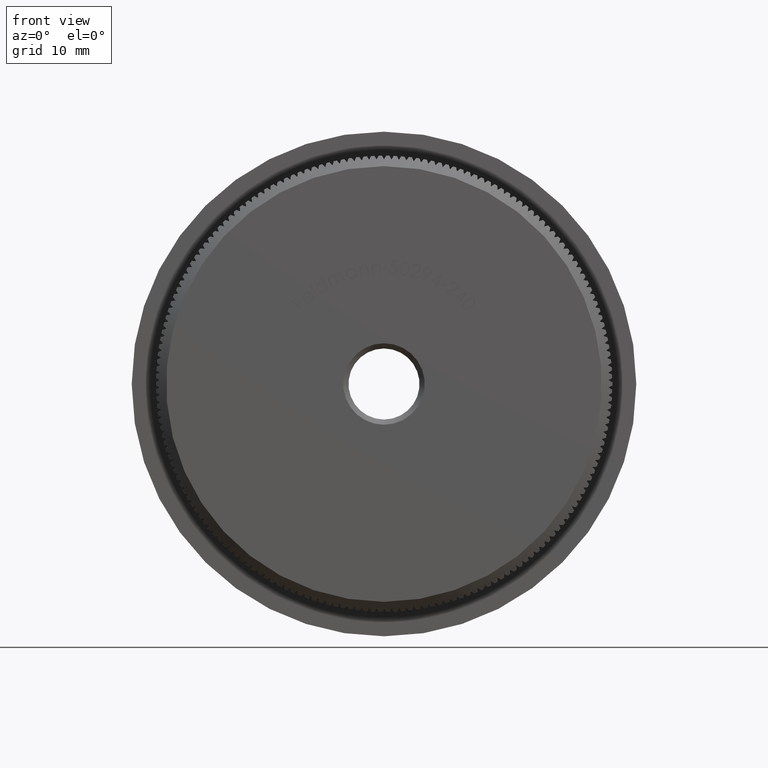
[diagram: clean part render]
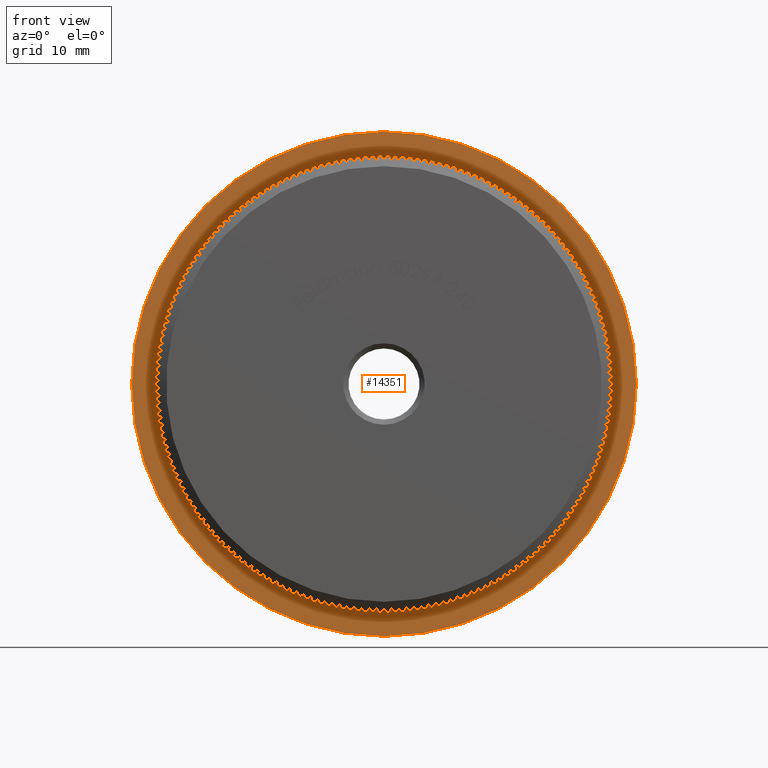
[diagram: same view with one face highlighted and labeled with its STEP entity id]
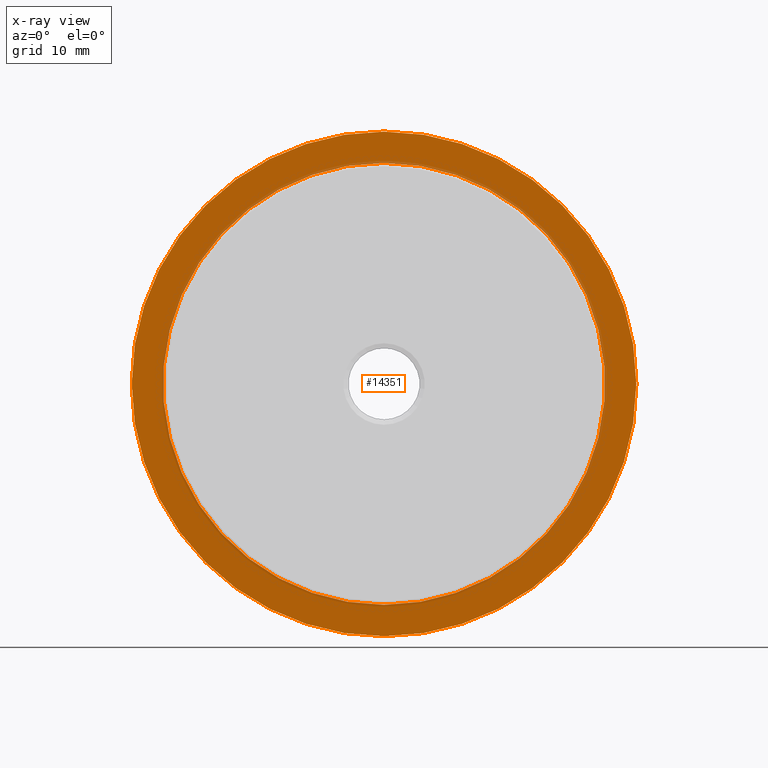
[diagram: x-ray of the same camera — body ghosted, the highlighted face saturated]
A machine part, front view. The second image highlights one B-rep face of the part: STEP entity #14351.
The next image is the same camera in x-ray: the body ghosted, the highlighted face saturated — about 7% of this face is hidden behind the body in this view.
In plain terms, the highlighted planar face has unit normal (0, -1, -0).
Its self-contained STEP definition (entity closure, byte-faithful):
#424 = EDGE_CURVE ( 'NONE', #6908, #23230, #24702, .T. ) ;
#1157 = AXIS2_PLACEMENT_3D ( 'NONE', #10465, #3197, #28148 ) ;
#3197 = DIRECTION ( 'NONE',  ( -0.0000000000000000000, -1.000000000000000000, -0.0000000000000000000 ) ) ;
#3220 = ORIENTED_EDGE ( 'NONE', *, *, #9763, .T. ) ;
#3813 = AXIS2_PLACEMENT_3D ( 'NONE', #13433, #18410, #8165 ) ;
#5092 = DIRECTION ( 'NONE',  ( -0.0000000000000000000, -1.000000000000000000, -0.0000000000000000000 ) ) ;
#5329 = CIRCLE ( 'NONE', #1157, 24.14999999999999900 ) ;
#5589 = EDGE_LOOP ( 'NONE', ( #17867, #12178 ) ) ;
#6908 = VERTEX_POINT ( 'NONE', #10144 ) ;
#8165 = DIRECTION ( 'NONE',  ( 0.0000000000000000000, 0.0000000000000000000, -1.000000000000000000 ) ) ;
#9763 = EDGE_CURVE ( 'NONE', #23230, #6908, #5329, .T. ) ;
#10144 = CARTESIAN_POINT ( 'NONE',  ( 2.957522019940858300E-015, 8.000000000000000000, 24.14999999999999900 ) ) ;
#10465 = CARTESIAN_POINT ( 'NONE',  ( 0.0000000000000000000, 8.000000000000000000, 0.0000000000000000000 ) ) ;
#10904 = CIRCLE ( 'NONE', #14905, 21.15000000000000200 ) ;
#11991 = CIRCLE ( 'NONE', #3813, 21.15000000000000200 ) ;
#12178 = ORIENTED_EDGE ( 'NONE', *, *, #30829, .F. ) ;
#13433 = CARTESIAN_POINT ( 'NONE',  ( 0.0000000000000000000, 8.000000000000000000, 0.0000000000000000000 ) ) ;
#13540 = DIRECTION ( 'NONE',  ( 0.0000000000000000000, -1.000000000000000000, -0.0000000000000000000 ) ) ;
#13654 = CARTESIAN_POINT ( 'NONE',  ( 21.15000000000000200, 8.000000000000000000, 0.0000000000000000000 ) ) ;
#14006 = CARTESIAN_POINT ( 'NONE',  ( 0.0000000000000000000, 8.000000000000000000, -24.14999999999999900 ) ) ;
#14351 = ADVANCED_FACE ( 'NONE', ( #30935, #25826 ), #28565, .T. ) ;
#14755 = CARTESIAN_POINT ( 'NONE',  ( 0.0000000000000000000, 8.000000000000000000, -21.15000000000000200 ) ) ;
#14905 = AXIS2_PLACEMENT_3D ( 'NONE', #15734, #20800, #18148 ) ;
#15109 = EDGE_CURVE ( 'NONE', #25907, #30646, #11991, .T. ) ;
#15734 = CARTESIAN_POINT ( 'NONE',  ( 0.0000000000000000000, 8.000000000000000000, 0.0000000000000000000 ) ) ;
#16132 = DIRECTION ( 'NONE',  ( 0.0000000000000000000, 0.0000000000000000000, -1.000000000000000000 ) ) ;
#17867 = ORIENTED_EDGE ( 'NONE', *, *, #15109, .F. ) ;
#18148 = DIRECTION ( 'NONE',  ( 0.0000000000000000000, 0.0000000000000000000, -1.000000000000000000 ) ) ;
#18410 = DIRECTION ( 'NONE',  ( -0.0000000000000000000, -1.000000000000000000, -0.0000000000000000000 ) ) ;
#19342 = AXIS2_PLACEMENT_3D ( 'NONE', #13654, #13540, #16132 ) ;
#20800 = DIRECTION ( 'NONE',  ( -0.0000000000000000000, -1.000000000000000000, -0.0000000000000000000 ) ) ;
#21384 = EDGE_LOOP ( 'NONE', ( #3220, #27511 ) ) ;
#23230 = VERTEX_POINT ( 'NONE', #14006 ) ;
#24702 = CIRCLE ( 'NONE', #26527, 24.14999999999999900 ) ;
#25826 = FACE_BOUND ( 'NONE', #5589, .T. ) ;
#25907 = VERTEX_POINT ( 'NONE', #14755 ) ;
#26527 = AXIS2_PLACEMENT_3D ( 'NONE', #30024, #5092, #30476 ) ;
#27511 = ORIENTED_EDGE ( 'NONE', *, *, #424, .T. ) ;
#28148 = DIRECTION ( 'NONE',  ( 0.0000000000000000000, 0.0000000000000000000, -1.000000000000000000 ) ) ;
#28565 = PLANE ( 'NONE',  #19342 ) ;
#29611 = CARTESIAN_POINT ( 'NONE',  ( 2.632990618166809600E-015, 8.000000000000000000, 21.15000000000000200 ) ) ;
#30024 = CARTESIAN_POINT ( 'NONE',  ( 0.0000000000000000000, 8.000000000000000000, 0.0000000000000000000 ) ) ;
#30476 = DIRECTION ( 'NONE',  ( 0.0000000000000000000, 0.0000000000000000000, -1.000000000000000000 ) ) ;
#30646 = VERTEX_POINT ( 'NONE', #29611 ) ;
#30829 = EDGE_CURVE ( 'NONE', #30646, #25907, #10904, .T. ) ;
#30935 = FACE_OUTER_BOUND ( 'NONE', #21384, .T. ) ;